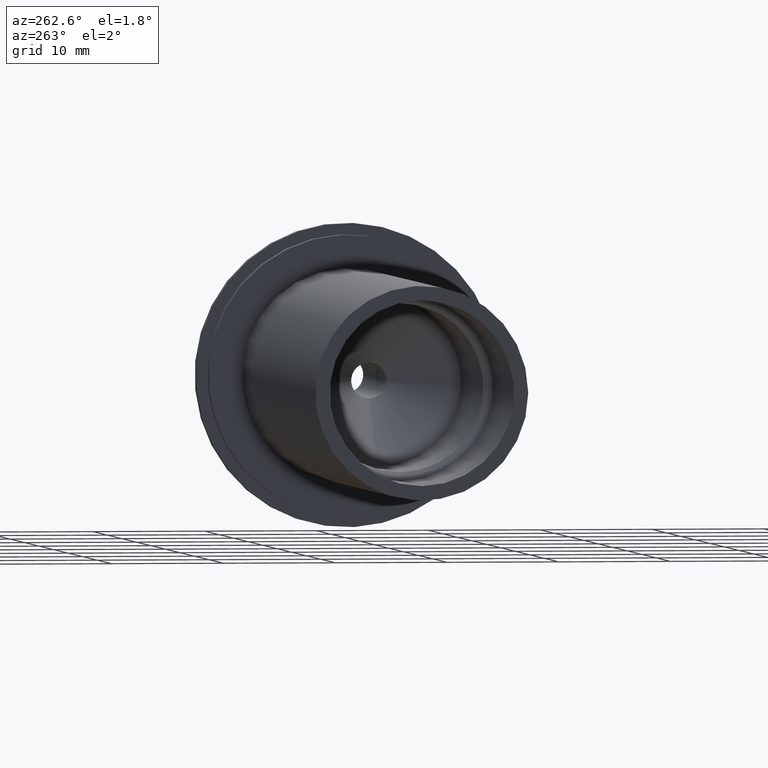
[diagram: clean part render]
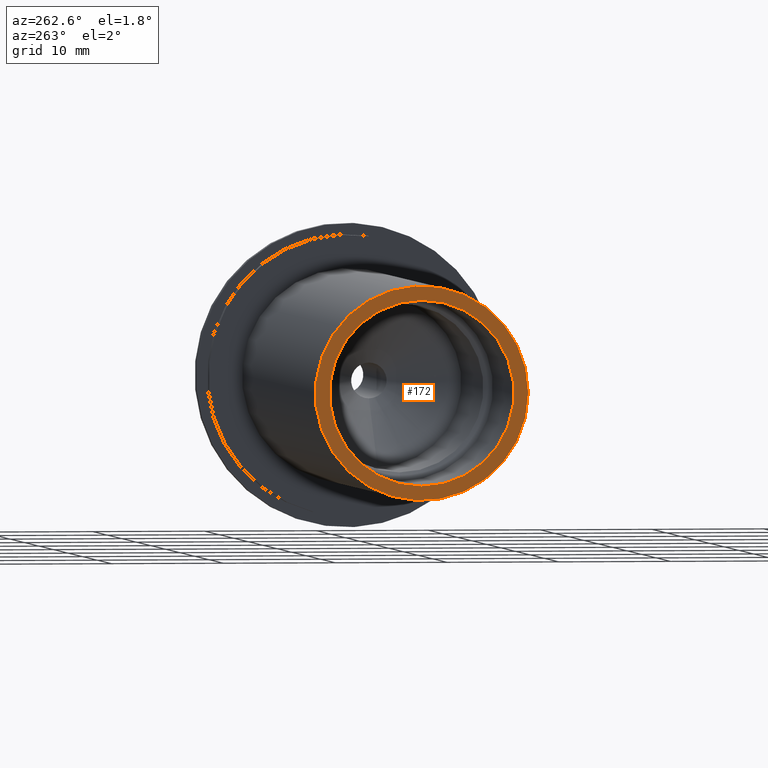
[diagram: same view with one face highlighted and labeled with its STEP entity id]
A machine part, auxiliary view. The second image highlights one B-rep face of the part: STEP entity #172.
In plain terms, the highlighted planar face has unit normal (-1, 0, 0).
Its self-contained STEP definition (entity closure, byte-faithful):
#17=FACE_BOUND('',#48,.T.);
#21=PLANE('',#217);
#33=FACE_OUTER_BOUND('',#47,.T.);
#47=EDGE_LOOP('',(#146));
#48=EDGE_LOOP('',(#147));
#75=CIRCLE('',#210,8.25);
#79=CIRCLE('',#218,9.525);
#88=VERTEX_POINT('',#306);
#92=VERTEX_POINT('',#320);
#105=EDGE_CURVE('',#88,#88,#75,.T.);
#111=EDGE_CURVE('',#92,#92,#79,.T.);
#146=ORIENTED_EDGE('',*,*,#111,.F.);
#147=ORIENTED_EDGE('',*,*,#105,.T.);
#172=ADVANCED_FACE('',(#33,#17),#21,.T.);
#210=AXIS2_PLACEMENT_3D('',#307,#252,#253);
#217=AXIS2_PLACEMENT_3D('',#319,#268,#269);
#218=AXIS2_PLACEMENT_3D('',#321,#270,#271);
#252=DIRECTION('center_axis',(1.,0.,0.));
#253=DIRECTION('ref_axis',(0.,0.,1.));
#268=DIRECTION('center_axis',(-1.,0.,0.));
#269=DIRECTION('ref_axis',(0.,0.,1.));
#270=DIRECTION('center_axis',(1.,0.,0.));
#271=DIRECTION('ref_axis',(0.,0.,-1.));
#306=CARTESIAN_POINT('',(-52.5,-1.01033360929657E-15,-8.25));
#307=CARTESIAN_POINT('Origin',(-52.5,0.,0.));
#319=CARTESIAN_POINT('Origin',(-52.5,9.525,0.));
#320=CARTESIAN_POINT('',(-52.5,-9.525,-1.16647607618785E-15));
#321=CARTESIAN_POINT('Origin',(-52.5,0.,0.));